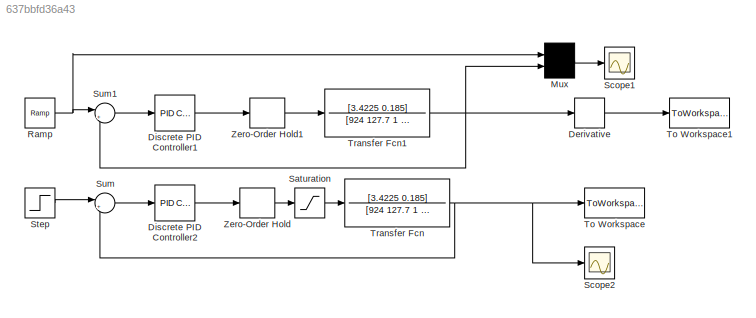
MODEL slx_637bbfd36a43
KIND model
CONFIG AbsTol = auto
CONFIG EnableMultiTasking = on
CONFIG FixedStep = auto
CONFIG MaxStep = auto
CONFIG MinStep = auto
CONFIG RelTol = 1e-3
CONFIG SampleTimeConstraint = Unconstrained
CONFIG Solver = ode45
CONFIG SolverName = ode45
CONFIG StartTime = 0.0
CONFIG StopTime = 100
BLOCK [Derivative] Derivative
BLOCK [Reference] Discrete PID Controller1  REF=simulink/Continuous/PID Controller
  Ports = [1, 1]
  SourceBlock = simulink/Continuous/PID Controller
  SourceType = PID 1dof
BLOCK [Reference] Discrete PID Controller2  REF=simulink/Continuous/PID Controller
  Ports = [1, 1]
  SourceBlock = simulink/Continuous/PID Controller
  SourceType = PID 1dof
BLOCK [Mux] Mux
  Inputs = 2
  Ports = [2, 1]
BLOCK [Reference] Ramp  REF=simulink/Sources/Ramp
  Ports = [0, 1]
  SourceBlock = simulink/Sources/Ramp
  SourceType = Ramp
BLOCK [Saturate] Saturation
  InputPortMap = u0
  Ports = [1, 1]
BLOCK [Scope] Scope1
  NumInputPorts = 1
  Ports = [1]
  ScopeSpecificationString = Simulink.scopes.TimeScopeBlockCfg('CurrentConfiguration', extmgr.ConfigurationSet(extmgr.Configuration('Core','General UI',true),extmgr.Configuration('Core','Source UI',true),extmgr.Configuration('Sources','WiredSimulink',true,'DataLoggingVariableName','ScopeData1','DataLoggingSaveFormat','StructureWithTime','DataLoggingLimitDataPoints',true,'DataLoggingDecimation','1','DataLoggingDecimateData',tr...<+1677ch>
BLOCK [Scope] Scope2
  NumInputPorts = 1
  Ports = [1]
  ScopeSpecificationString = Simulink.scopes.TimeScopeBlockCfg('CurrentConfiguration', extmgr.ConfigurationSet(extmgr.Configuration('Core','General UI',true),extmgr.Configuration('Core','Source UI',true),extmgr.Configuration('Sources','WiredSimulink',true,'DataLoggingSaveFormat','StructureWithTime','DataLoggingLimitDataPoints',true,'DataLoggingDecimation','1','DataLoggingDecimateData',true),extmgr.Configuration('Visuals','Tim...<+1667ch>
BLOCK [Step] Step
  SampleTime = 0
BLOCK [Sum] Sum
  IconShape = round
  InputSameDT = off
  Inputs = |+-
  OutDataTypeStr = Inherit: Inherit via internal rule
  Ports = [2, 1]
  SaturateOnIntegerOverflow = off
BLOCK [Sum] Sum1
  IconShape = round
  InputSameDT = off
  Inputs = |+-
  OutDataTypeStr = Inherit: Inherit via internal rule
  Ports = [2, 1]
  SaturateOnIntegerOverflow = off
BLOCK [ToWorkspace] To Workspace
  MaxDataPoints = inf
  Ports = [1]
  SampleTime = -1
  VariableName = y
BLOCK [ToWorkspace] To Workspace1
  MaxDataPoints = inf
  Ports = [1]
  SampleTime = -1
  VariableName = yrampangle
BLOCK [TransferFcn] Transfer Fcn
  Denominator = [924 127.7 1 0]
  Numerator = [3.4225 0.185]
BLOCK [TransferFcn] Transfer Fcn1
  Denominator = [924 127.7 1 0]
  Numerator = [3.4225 0.185]
BLOCK [ZeroOrderHold] Zero-Order Hold
  SampleTime = 0.6
BLOCK [ZeroOrderHold] Zero-Order Hold1
  SampleTime = 0.6
LINE Derivative:1 -> To Workspace1:1
LINE Discrete PID Controller1:1 -> Zero-Order Hold1:1
LINE Discrete PID Controller2:1 -> Zero-Order Hold:1
LINE Mux:1 -> Scope1:1
NET Ramp:1 -> Mux:1, Sum1:1
LINE Saturation:1 -> Transfer Fcn:1
LINE Step:1 -> Sum:1
LINE Sum1:1 -> Discrete PID Controller1:1
LINE Sum:1 -> Discrete PID Controller2:1
NET Transfer Fcn1:1 -> Derivative:1, Mux:2, Sum1:2
NET Transfer Fcn:1 -> Scope2:1, Sum:2, To Workspace:1
LINE Zero-Order Hold1:1 -> Transfer Fcn1:1
LINE Zero-Order Hold:1 -> Saturation:1
note: NET lines group one-source signal fan-out (src -> all destinations, sorted); 1:1 wires keep LINE
